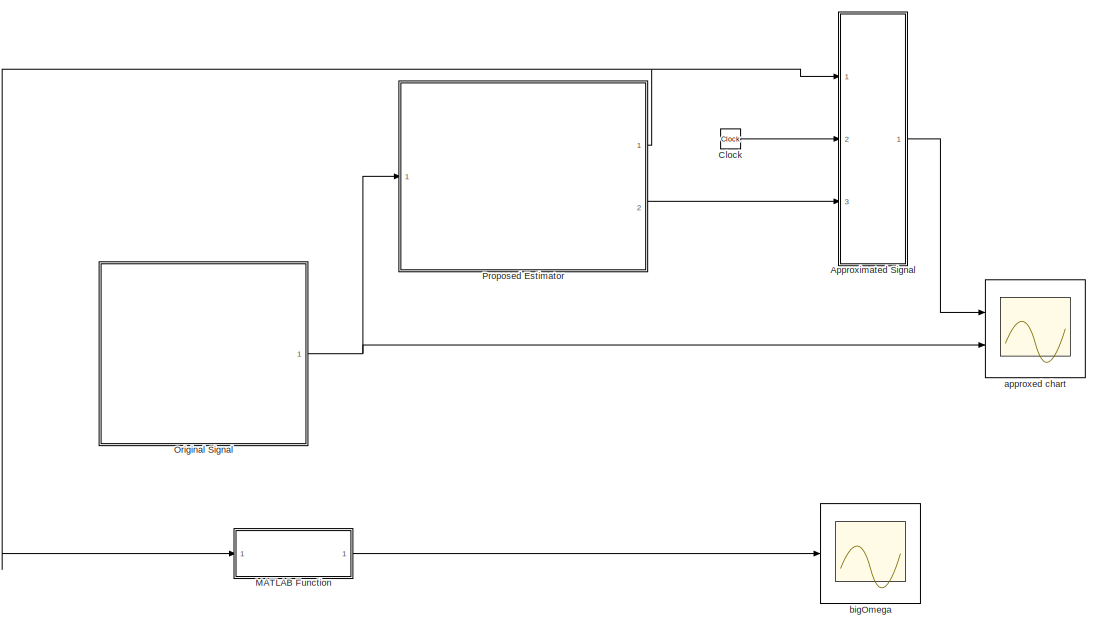
[diagram: root canvas - part 1/2, right side, full height]
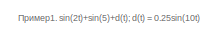
[diagram: root canvas - part 2/2, top left region]
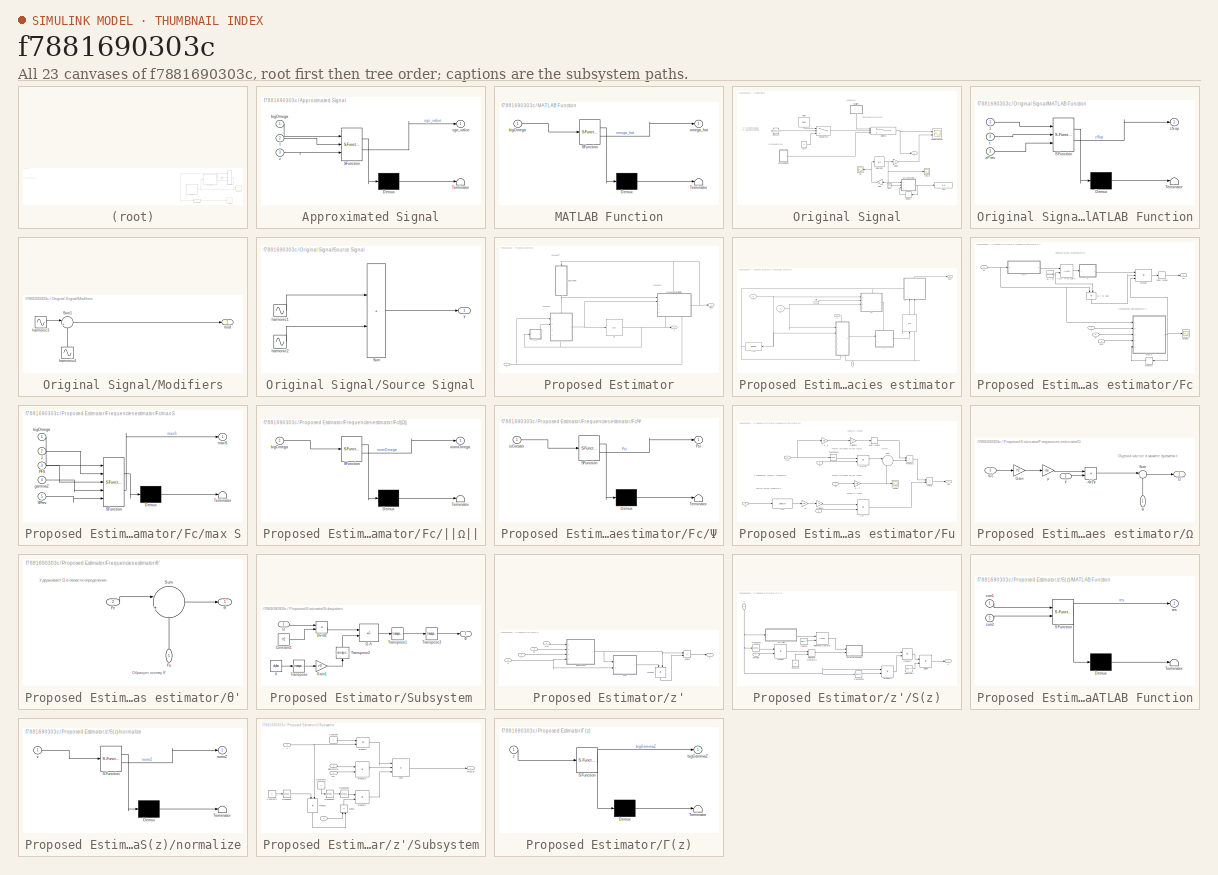
[diagram: thumbnail index - all 23 canvases of the model, root first then tree order]
MODEL slx_f7881690303c
KIND model
CONFIG AbsTol = auto
CONFIG EnableMultiTasking = off
CONFIG FixedStep = 0.0001
CONFIG MaxStep = auto
CONFIG MinStep = auto
CONFIG RelTol = 1e-3
CONFIG SampleTimeConstraint = Unconstrained
CONFIG SolverName = ode4
CONFIG StartTime = 0.0
CONFIG StopTime = 200.0
WORKSPACE source: external: MATLAB File  (data not in archive)
BLOCK [SubSystem] Approximated Signal
  ErrorFcn = Stateflow.Translate.translate
  PermitHierarchicalResolution = ExplicitOnly
  Ports = [3, 1]
  RequestExecContextInheritance = off
  SFBlockType = MATLAB Function
  TreatAsAtomicUnit = on
BLOCK [Demux] Approximated Signal/ Demux 
  Outputs = 1
  Ports = [1, 1]
BLOCK [S-Function] Approximated Signal/ SFunction 
  EnableBusSupport = on
  FunctionName = sf_sfun
  Parameters = dimension,r
  PortCounts = [3 2]
  Ports = [3, 2]
  SFcnIsStateOwnerBlock = off
  SFunctionDeploymentMode = off
  Tag = Stateflow S-Function 1
BLOCK [Terminator] Approximated Signal/ Terminator 
BLOCK [Inport] Approximated Signal/bigOmega
BLOCK [Outport] Approximated Signal/sgn_value
BLOCK [Inport] Approximated Signal/t
  Port = 2
BLOCK [Inport] Approximated Signal/z
  Port = 3
BLOCK [Clock] Clock
BLOCK [SubSystem] MATLAB Function
  ErrorFcn = Stateflow.Translate.translate
  PermitHierarchicalResolution = ExplicitOnly
  Ports = [1, 1]
  RequestExecContextInheritance = off
  SFBlockType = MATLAB Function
  TreatAsAtomicUnit = on
BLOCK [Demux] MATLAB Function/ Demux 
  Outputs = 1
  Ports = [1, 1]
BLOCK [S-Function] MATLAB Function/ SFunction 
  EnableBusSupport = on
  FunctionName = sf_sfun
  PortCounts = [1 2]
  Ports = [1, 2]
  SFcnIsStateOwnerBlock = off
  SFunctionDeploymentMode = off
  Tag = Stateflow S-Function 16
BLOCK [Terminator] MATLAB Function/ Terminator 
BLOCK [Inport] MATLAB Function/bigOmega
BLOCK [Outport] MATLAB Function/omega_hat
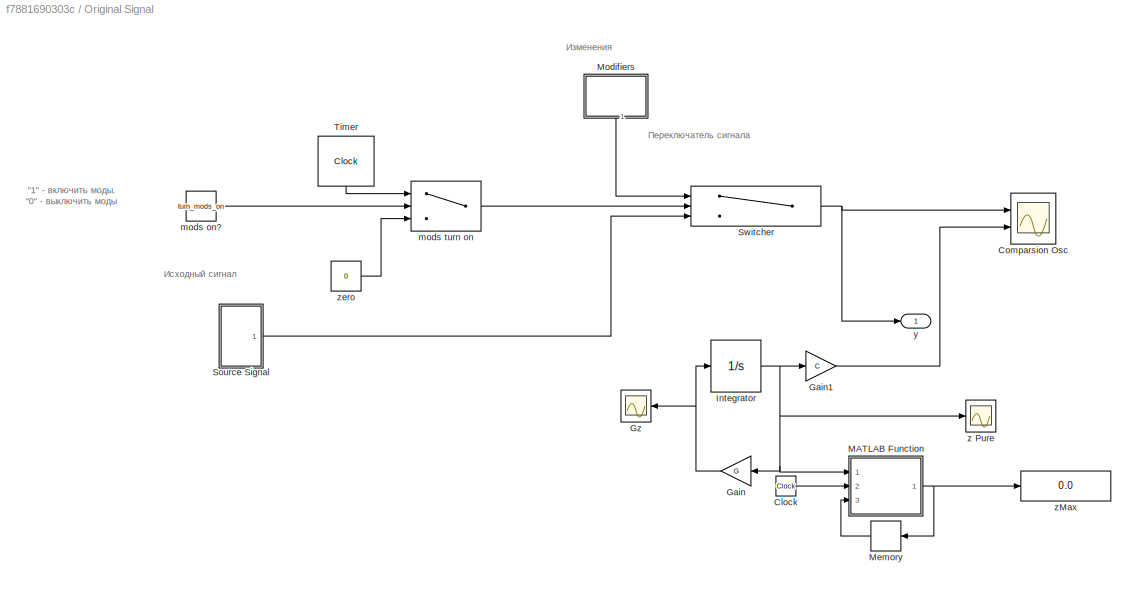
BLOCK [SubSystem] Original Signal
  Ports = [0, 1]
  Priority = 1
  RequestExecContextInheritance = off
  TreatAsAtomicUnit = on
BLOCK [Clock] Original Signal/Clock
  Commented = on
BLOCK [Scope] Original Signal/Comparsion Osc
  Floating = off
  NumInputPorts = 2
  Ports = [2]
  ScopeSpecificationString = Simulink.scopes.TimeScopeBlockCfg('CurrentConfiguration', extmgr.ConfigurationSet(extmgr.Configuration('Core','General UI',true),extmgr.Configuration('Core','Source UI',true),extmgr.Configuration('Sources','WiredSimulink',true,'DataLoggingVariableName','ScopeData1'),extmgr.Configuration('Visuals','Time Domain',true,'SerializedDisplays',{struct('MinYLimReal','-2.38245','MaxYLimReal','2.38245','YLab...<+2062ch>
BLOCK [Gain] Original Signal/Gain
  Commented = on
  Gain = G
  Multiplication = Matrix(K*u)
  NameLocation = top
BLOCK [Gain] Original Signal/Gain1
  Commented = on
  Gain = C
  Multiplication = Matrix(K*u)
  NameLocation = top
BLOCK [Scope] Original Signal/Gz
  Commented = on
  Floating = off
  NameLocation = top
  NumInputPorts = 1
  Ports = [1]
  ScopeSpecificationString = Simulink.scopes.TimeScopeBlockCfg('CurrentConfiguration', extmgr.ConfigurationSet(extmgr.Configuration('Core','General UI',true),extmgr.Configuration('Core','Source UI',true),extmgr.Configuration('Sources','WiredSimulink',true,'DataLoggingVariableName','ScopeData2'),extmgr.Configuration('Visuals','Time Domain',true,'SerializedDisplays',{struct('MinYLimReal','-5.00000','MaxYLimReal','5.00000','YLab...<+1469ch>
BLOCK [Integrator] Original Signal/Integrator
  Commented = on
  InitialCondition = [0;(r^2)/2;0;(r^2)/3;0]
  Ports = [1, 1]
BLOCK [SubSystem] Original Signal/MATLAB Function
  Commented = on
  ErrorFcn = Stateflow.Translate.translate
  PermitHierarchicalResolution = ExplicitOnly
  Ports = [3, 1]
  RequestExecContextInheritance = off
  SFBlockType = MATLAB Function
  TreatAsAtomicUnit = on
BLOCK [Demux] Original Signal/MATLAB Function/ Demux 
  Outputs = 1
  Ports = [1, 1]
BLOCK [S-Function] Original Signal/MATLAB Function/ SFunction 
  EnableBusSupport = on
  FunctionName = sf_sfun
  PortCounts = [3 2]
  Ports = [3, 2]
  SFcnIsStateOwnerBlock = off
  SFunctionDeploymentMode = off
  Tag = Stateflow S-Function 9
BLOCK [Terminator] Original Signal/MATLAB Function/ Terminator 
BLOCK [Inport] Original Signal/MATLAB Function/t
  Port = 2
BLOCK [Inport] Original Signal/MATLAB Function/z
BLOCK [Inport] Original Signal/MATLAB Function/zPrev
  Port = 3
BLOCK [Outport] Original Signal/MATLAB Function/zSup
BLOCK [Memory] Original Signal/Memory
  Commented = on
  NameLocation = top
BLOCK [SubSystem] Original Signal/Modifiers
  NameLocation = left
  Ports = [0, 1]
  RequestExecContextInheritance = off
BLOCK [Sum] Original Signal/Modifiers/Sum1
  Inputs = |++
  Ports = [2, 1]
BLOCK [Sin] Original Signal/Modifiers/harmonic3
  Amplitude = amp_M(1)
  Bias = bias_M(1)
  Frequency = freq_M(1)
  Phase = phase_M(1)
  Ports = [0, 1]
  Priority = 0
  SampleTime = 0
BLOCK [Sin] Original Signal/Modifiers/harmonic4
  Amplitude = amp_M(2)
  Bias = bias_M(2)
  Frequency = freq_M(2)
  NameLocation = right
  Phase = phase_M(2)
  Ports = [0, 1]
  Priority = 0
  SampleTime = 0
BLOCK [Outport] Original Signal/Modifiers/mod
BLOCK [SubSystem] Original Signal/Source Signal
  Ports = [0, 1]
  RequestExecContextInheritance = off
BLOCK [Sum] Original Signal/Source Signal/Sum
  IconShape = rectangular
  Inputs = |++
  Ports = [2, 1]
BLOCK [Sin] Original Signal/Source Signal/harmonic1
  Amplitude = amp(1)
  Bias = bias(1)
  Frequency = freq(1)
  Phase = phase(1)
  Ports = [0, 1]
  Priority = 0
  SampleTime = 0
BLOCK [Sin] Original Signal/Source Signal/harmonic2
  Amplitude = amp(2)
  Bias = bias(2)
  Frequency = freq(2)
  Phase = phase(2)
  Ports = [0, 1]
  Priority = 0
  SampleTime = 0
BLOCK [Outport] Original Signal/Source Signal/y
BLOCK [Switch] Original Signal/Switcher
  Criteria = u2 > Threshold
  InputSameDT = off
  SaturateOnIntegerOverflow = off
  Threshold = freqSwitcher
BLOCK [Clock] Original Signal/Timer
  DisplayTime = on
  NameLocation = left
BLOCK [Constant] Original Signal/mods on?
  Value = turn_mods_on
BLOCK [Switch] Original Signal/mods turn on
  Criteria = u2 > Threshold
  InputSameDT = off
  SaturateOnIntegerOverflow = off
BLOCK [Outport] Original Signal/y
BLOCK [Scope] Original Signal/z Pure
  Commented = on
  Floating = off
  NumInputPorts = 1
  Ports = [1]
  ScopeSpecificationString = Simulink.scopes.TimeScopeBlockCfg('CurrentConfiguration', extmgr.ConfigurationSet(extmgr.Configuration('Core','General UI',true),extmgr.Configuration('Core','Source UI',true),extmgr.Configuration('Sources','WiredSimulink',true,'DataLoggingVariableName','ScopeData1'),extmgr.Configuration('Visuals','Time Domain',true,'SerializedDisplays',{struct('MinYLimReal','-1.25','MaxYLimReal','1.25','YLabelReal...<+1579ch>
BLOCK [Display] Original Signal/zMax
  Commented = on
  Decimation = 1
  Format = long
  Ports = [1]
BLOCK [Constant] Original Signal/zero
  Value = 0
BLOCK [SubSystem] Proposed Estimator
  Ports = [1, 2]
  Priority = 2
  RequestExecContextInheritance = off
  TreatAsAtomicUnit = on
BLOCK [SubSystem] Proposed Estimator/Frequencies estimator
  PortSchema = {"entries":[{"content":{"sides":[{"content":{"connectorIds":["In1","In2"]},"type":"ConnectorPlacement.EquallySpacedRectSide","uuid":"56415c13-d553-4f88-94d3-75bcdc800e4b"},{"content":{"connectorIds":["Out1"],"side":"RIGHT"},"type":"ConnectorPlacement.EquallySpacedRectSide","uuid":"a1bdd2d2-4e49-40cb-b0b7-1df5316e4510"},{"content":{"connectorIds":["In3"],"side":"TOP"},"type":"ConnectorPlacement.Equ...<+406ch>
  Ports = [5, 1]
  RequestExecContextInheritance = off
BLOCK [SubSystem] Proposed Estimator/Frequencies estimator/Fc
  PortSchema = {"entries":[{"content":{"sides":[{"content":{"connectorIds":["In1","In2","In3"]},"type":"ConnectorPlacement.EquallySpacedRectSide","uuid":"ef8cffdc-1e6f-42c0-8cb3-bf318ca182f8"},{"content":{"connectorIds":["Out1"],"side":"RIGHT"},"type":"ConnectorPlacement.EquallySpacedRectSide","uuid":"a9c7e5b7-281a-47aa-808a-eb2877f3eee0"},{"content":{"connectorIds":["In4"],"side":"TOP"},"type":"ConnectorPlaceme...<+401ch>
  Ports = [4, 1]
  Priority = 8
  RequestExecContextInheritance = off
  TreatAsAtomicUnit = on
BLOCK [Outport] Proposed Estimator/Frequencies estimator/Fc/Fc
BLOCK [Memory] Proposed Estimator/Frequencies estimator/Fc/Memory
  NameLocation = top
BLOCK [Scope] Proposed Estimator/Frequencies estimator/Fc/Scope2
  Floating = off
  NumInputPorts = 1
  Ports = [1]
  ScopeSpecificationString = Simulink.scopes.TimeScopeBlockCfg('CurrentConfiguration', extmgr.ConfigurationSet(extmgr.Configuration('Core','General UI',true),extmgr.Configuration('Core','Source UI',true),extmgr.Configuration('Sources','WiredSimulink',true,'DataLoggingVariableName','ScopeData1'),extmgr.Configuration('Visuals','Time Domain',true,'PlotType','Line','SerializedDisplays',{struct('MinYLimReal','38.91523','MaxYLimRea...<+1529ch>
BLOCK [UnaryMinus] Proposed Estimator/Frequencies estimator/Fc/Unary Minus
BLOCK [SubSystem] Proposed Estimator/Frequencies estimator/Fc/max S
  ErrorFcn = Stateflow.Translate.translate
  PermitHierarchicalResolution = ExplicitOnly
  Ports = [5, 1]
  RequestExecContextInheritance = off
  SFBlockType = MATLAB Function
  TreatAsAtomicUnit = on
BLOCK [Demux] Proposed Estimator/Frequencies estimator/Fc/max S/ Demux 
  Outputs = 1
  Ports = [1, 1]
BLOCK [S-Function] Proposed Estimator/Frequencies estimator/Fc/max S/ SFunction 
  EnableBusSupport = on
  FunctionName = sf_sfun
  Parameters = delta,dimension,mu,r
  PortCounts = [5 2]
  Ports = [5, 2]
  SFcnIsStateOwnerBlock = off
  SFunctionDeploymentMode = off
  Tag = Stateflow S-Function 13
BLOCK [Terminator] Proposed Estimator/Frequencies estimator/Fc/max S/ Terminator 
BLOCK [Inport] Proposed Estimator/Frequencies estimator/Fc/max S/PHI
  Port = 3
BLOCK [Inport] Proposed Estimator/Frequencies estimator/Fc/max S/SPrev
  Port = 5
BLOCK [Inport] Proposed Estimator/Frequencies estimator/Fc/max S/bigOmega
BLOCK [Inport] Proposed Estimator/Frequencies estimator/Fc/max S/gammaZ
  Port = 4
BLOCK [Outport] Proposed Estimator/Frequencies estimator/Fc/max S/maxS
BLOCK [Inport] Proposed Estimator/Frequencies estimator/Fc/max S/z
  Port = 2
BLOCK [Product] Proposed Estimator/Frequencies estimator/Fc/product
  Inputs = 3
  Ports = [3, 1]
BLOCK [Inport] Proposed Estimator/Frequencies estimator/Fc/z
BLOCK [SubSystem] Proposed Estimator/Frequencies estimator/Fc/||Ω||
  ErrorFcn = Stateflow.Translate.translate
  PermitHierarchicalResolution = ExplicitOnly
  Ports = [1, 1]
  RequestExecContextInheritance = off
  SFBlockType = MATLAB Function
  TreatAsAtomicUnit = on
BLOCK [RelationalOperator] Proposed Estimator/Frequencies estimator/Fc/||Ω|| >= Ω cap ? 
  InputSameDT = off
  OutDataTypeStr = boolean
  Ports = [2, 1]
  RndMeth = Simplest
BLOCK [Demux] Proposed Estimator/Frequencies estimator/Fc/||Ω||/ Demux 
  Outputs = 1
  Ports = [1, 1]
BLOCK [S-Function] Proposed Estimator/Frequencies estimator/Fc/||Ω||/ SFunction 
  EnableBusSupport = on
  FunctionName = sf_sfun
  PortCounts = [1 2]
  Ports = [1, 2]
  SFcnIsStateOwnerBlock = off
  SFunctionDeploymentMode = off
  Tag = Stateflow S-Function 5
BLOCK [Terminator] Proposed Estimator/Frequencies estimator/Fc/||Ω||/ Terminator 
BLOCK [Inport] Proposed Estimator/Frequencies estimator/Fc/||Ω||/bigOmega
BLOCK [Outport] Proposed Estimator/Frequencies estimator/Fc/||Ω||/normOmega
BLOCK [SubSystem] Proposed Estimator/Frequencies estimator/Fc/Ψ
  ErrorFcn = Stateflow.Translate.translate
  PermitHierarchicalResolution = ExplicitOnly
  Ports = [1, 1]
  RequestExecContextInheritance = off
  SFBlockType = MATLAB Function
  TreatAsAtomicUnit = on
BLOCK [Demux] Proposed Estimator/Frequencies estimator/Fc/Ψ/ Demux 
  Outputs = 1
  Ports = [1, 1]
BLOCK [S-Function] Proposed Estimator/Frequencies estimator/Fc/Ψ/ SFunction 
  EnableBusSupport = on
  FunctionName = sf_sfun
  PortCounts = [1 2]
  Ports = [1, 2]
  SFcnIsStateOwnerBlock = off
  SFunctionDeploymentMode = off
  Tag = Stateflow S-Function 6
BLOCK [Terminator] Proposed Estimator/Frequencies estimator/Fc/Ψ/ Terminator 
BLOCK [Outport] Proposed Estimator/Frequencies estimator/Fc/Ψ/Psi
BLOCK [Inport] Proposed Estimator/Frequencies estimator/Fc/Ψ/isGreater
BLOCK [Inport] Proposed Estimator/Frequencies estimator/Fc/Ω
  Port = 2
BLOCK [Constant] Proposed Estimator/Frequencies estimator/Fc/Ω * √n
  Value = omegaLimiter
BLOCK [Product] Proposed Estimator/Frequencies estimator/Fc/Ω // Ω cap
  Inputs = */
  NameLocation = left
  Ports = [2, 1]
BLOCK [Inport] Proposed Estimator/Frequencies estimator/Fc/Г(z)
  Port = 4
BLOCK [Inport] Proposed Estimator/Frequencies estimator/Fc/Ф
  Port = 3
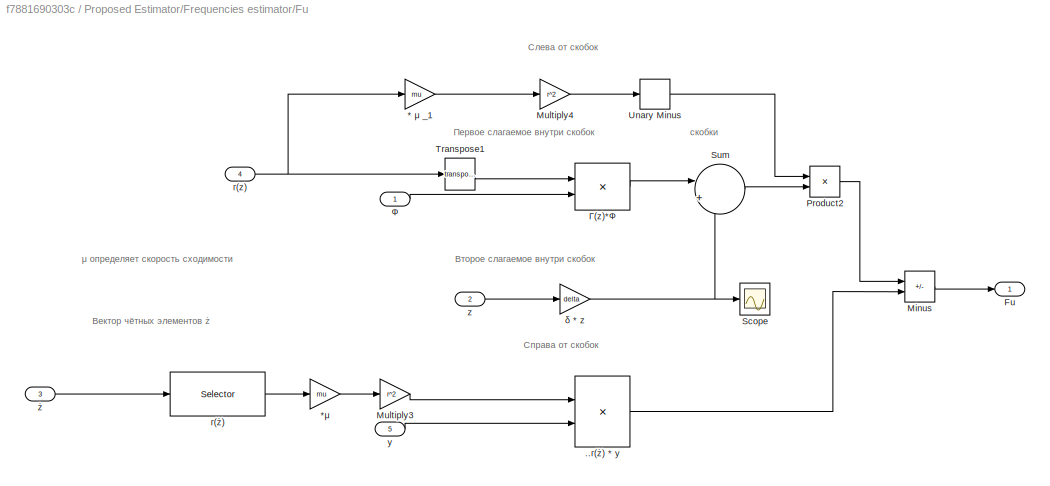
BLOCK [SubSystem] Proposed Estimator/Frequencies estimator/Fu
  PortSchema = {"entries":[{"content":{"sides":[{"content":{"connectorIds":["In1","In2"]},"type":"ConnectorPlacement.EquallySpacedRectSide","uuid":"56415c13-d553-4f88-94d3-75bcdc800e4b"},{"content":{"connectorIds":["Out1"],"side":"RIGHT"},"type":"ConnectorPlacement.EquallySpacedRectSide","uuid":"a1bdd2d2-4e49-40cb-b0b7-1df5316e4510"},{"content":{"connectorIds":["In3"],"side":"TOP"},"type":"ConnectorPlacement.Equ...<+406ch>
  Ports = [5, 1]
  Priority = 9
  RequestExecContextInheritance = off
  TreatAsAtomicUnit = on
BLOCK [Gain] Proposed Estimator/Frequencies estimator/Fu/* μ _1
  Gain = mu
BLOCK [Gain] Proposed Estimator/Frequencies estimator/Fu/*μ
  Gain = mu
BLOCK [Product] Proposed Estimator/Frequencies estimator/Fu/..г(ż) * y
  Ports = [2, 1]
BLOCK [Outport] Proposed Estimator/Frequencies estimator/Fu/Fu
BLOCK [Sum] Proposed Estimator/Frequencies estimator/Fu/Minus
  IconShape = rectangular
  Inputs = +-
  Ports = [2, 1]
BLOCK [Gain] Proposed Estimator/Frequencies estimator/Fu/Multiply3
  Gain = r^2
BLOCK [Gain] Proposed Estimator/Frequencies estimator/Fu/Multiply4
  Gain = r^2
BLOCK [Product] Proposed Estimator/Frequencies estimator/Fu/Product2
  Ports = [2, 1]
BLOCK [Scope] Proposed Estimator/Frequencies estimator/Fu/Scope
  Floating = off
  NumInputPorts = 1
  Ports = [1]
  ScopeSpecificationString = Simulink.scopes.TimeScopeBlockCfg('CurrentConfiguration', extmgr.ConfigurationSet(extmgr.Configuration('Core','General UI',true),extmgr.Configuration('Core','Source UI',true),extmgr.Configuration('Sources','WiredSimulink',true,'DataLoggingVariableName','ScopeData1'),extmgr.Configuration('Visuals','Time Domain',true,'SerializedDisplays',{struct('MinYLimReal','-3.51184','MaxYLimReal','3.96438','YLab...<+1362ch>
BLOCK [Sum] Proposed Estimator/Frequencies estimator/Fu/Sum
  Inputs = |++
  Ports = [2, 1]
BLOCK [Math] Proposed Estimator/Frequencies estimator/Fu/Transpose1
  Operator = transpose
  Ports = [1, 1]
BLOCK [UnaryMinus] Proposed Estimator/Frequencies estimator/Fu/Unary Minus
BLOCK [Inport] Proposed Estimator/Frequencies estimator/Fu/y
  Port = 5
BLOCK [Inport] Proposed Estimator/Frequencies estimator/Fu/z
  Port = 2
BLOCK [Inport] Proposed Estimator/Frequencies estimator/Fu/ż
  Port = 3
BLOCK [Gain] Proposed Estimator/Frequencies estimator/Fu/δ * z
  Gain = delta
  Multiplication = Matrix(K*u)
BLOCK [Product] Proposed Estimator/Frequencies estimator/Fu/Г(z)*Ф
  Multiplication = Matrix(*)
  Ports = [2, 1]
BLOCK [Inport] Proposed Estimator/Frequencies estimator/Fu/Ф
  NameLocation = left
BLOCK [Inport] Proposed Estimator/Frequencies estimator/Fu/г(z)
  Port = 4
BLOCK [Selector] Proposed Estimator/Frequencies estimator/Fu/г(ż)
  IndexOptions = Index vector (dialog)
  Indices = 2:2:2*dimension
  InputPortWidth = 2*dimension+1
  OutputSizes = 1
  Ports = [1, 1]
BLOCK [Inport] Proposed Estimator/Frequencies estimator/y
  NameLocation = right
  Port = 5
BLOCK [Inport] Proposed Estimator/Frequencies estimator/z
  Port = 4
BLOCK [Inport] Proposed Estimator/Frequencies estimator/ż
  Port = 2
BLOCK [SubSystem] Proposed Estimator/Frequencies estimator/Ω
  PortSchema = {"entries":[{"content":{"sides":[{"content":{"connectorIds":["In1","In2"]},"type":"ConnectorPlacement.EquallySpacedRectSide","uuid":"0172ca52-64e8-432c-895c-e5829558e278"},{"content":{"connectorIds":["Out1"],"side":"RIGHT"},"type":"ConnectorPlacement.EquallySpacedRectSide","uuid":"c83f4e01-5d94-498a-a9de-b4a302d500ab"},{"content":{"connectorIds":["In3"],"side":"TOP"},"type":"ConnectorPlacement.Equ...<+251ch>
  Ports = [3, 1]
  Priority = 5
  RequestExecContextInheritance = off
  TreatAsAtomicUnit = on
BLOCK [Inport] Proposed Estimator/Frequencies estimator/Ω in
  Port = 3
BLOCK [Outport] Proposed Estimator/Frequencies estimator/Ω out
BLOCK [Product] Proposed Estimator/Frequencies estimator/Ω/..г(z)*y
  Ports = [2, 1]
BLOCK [Gain] Proposed Estimator/Frequencies estimator/Ω/Gain
  Gain = r^2
BLOCK [Sum] Proposed Estimator/Frequencies estimator/Ω/Sum
  Inputs = |++
  Ports = [2, 1]
BLOCK [Inport] Proposed Estimator/Frequencies estimator/Ω/y
  Port = 2
BLOCK [Outport] Proposed Estimator/Frequencies estimator/Ω/Ω
BLOCK [Inport] Proposed Estimator/Frequencies estimator/Ω/θ
  NameLocation = right
BLOCK [Gain] Proposed Estimator/Frequencies estimator/Ω/μ
  Gain = mu
BLOCK [Inport] Proposed Estimator/Frequencies estimator/Ω/г(z)
  Port = 3
BLOCK [SubSystem] Proposed Estimator/Frequencies estimator/θ'
  PortSchema = {"entries":[{"content":{"sides":[{"content":{"connectorIds":["In1"]},"type":"ConnectorPlacement.EquallySpacedRectSide","uuid":"9184f415-d771-478b-8114-38f854f6aad6"},{"content":{"connectorIds":["Out1"],"side":"RIGHT"},"type":"ConnectorPlacement.EquallySpacedRectSide","uuid":"399c2935-e635-4d1c-9ba7-451eea57bae3"},{"content":{"connectorIds":["In2"],"side":"TOP"},"type":"ConnectorPlacement.EquallySp...<+245ch>
  Ports = [2, 1]
  Priority = 10
  RequestExecContextInheritance = off
  TreatAsAtomicUnit = on
BLOCK [Inport] Proposed Estimator/Frequencies estimator/θ'/Fc
  Port = 2
BLOCK [Inport] Proposed Estimator/Frequencies estimator/θ'/Fu
  NameLocation = right
BLOCK [Sum] Proposed Estimator/Frequencies estimator/θ'/Sum
  Inputs = |++
  Ports = [2, 1]
BLOCK [Outport] Proposed Estimator/Frequencies estimator/θ'/θ'
BLOCK [Inport] Proposed Estimator/Frequencies estimator/Ф
BLOCK [Selector] Proposed Estimator/Frequencies estimator/г(z)
  IndexOptions = Index vector (dialog)
  Indices = 2:2:2*dimension
  InputPortWidth = 2*dimension+1
  NameLocation = top
  OutputSizes = 1
  Ports = [1, 1]
BLOCK [Integrator] Proposed Estimator/Frequencies estimator/∫θ 
  InitialCondition = initialTheta
  NameLocation = right
  Ports = [1, 1]
  Priority = 3
BLOCK [SubSystem] Proposed Estimator/Subsystem
  Ports = [1, 1]
  Priority = 6
  RequestExecContextInheritance = off
  TreatAsAtomicUnit = on
BLOCK [Constant] Proposed Estimator/Subsystem/Constant1
  Value = r^2
BLOCK [Product] Proposed Estimator/Subsystem/Divide
  Inputs = */
  Ports = [2, 1]
BLOCK [Gain] Proposed Estimator/Subsystem/Gain1
  Gain = r^2
BLOCK [Math] Proposed Estimator/Subsystem/Transpose
  Operator = transpose
  Ports = [1, 1]
BLOCK [Math] Proposed Estimator/Subsystem/Transpose1
  Operator = transpose
  Ports = [1, 1]
BLOCK [Math] Proposed Estimator/Subsystem/Transpose2
  NameLocation = right
  Operator = transpose
  Ports = [1, 1]
BLOCK [Math] Proposed Estimator/Subsystem/Transpose3
  Operator = transpose
  Ports = [1, 1]
BLOCK [Constant] Proposed Estimator/Subsystem/Λ
  Value = alpha
BLOCK [Inport] Proposed Estimator/Subsystem/Ω
  NameLocation = top
BLOCK [Sum] Proposed Estimator/Subsystem/Ω-Λ
  IconShape = rectangular
  Inputs = +-
  Ports = [2, 1]
BLOCK [Outport] Proposed Estimator/Subsystem/Ф
BLOCK [Inport] Proposed Estimator/y
BLOCK [Outport] Proposed Estimator/z
  Port = 2
BLOCK [SubSystem] Proposed Estimator/z'
  PortSchema = {"entries":[{"content":{"sides":[{"content":{"connectorIds":["In1","In2"]},"type":"ConnectorPlacement.EquallySpacedRectSide","uuid":"ef8cffdc-1e6f-42c0-8cb3-bf318ca182f8"},{"content":{"connectorIds":["Out1"],"side":"RIGHT"},"type":"ConnectorPlacement.EquallySpacedRectSide","uuid":"a9c7e5b7-281a-47aa-808a-eb2877f3eee0"},{"content":{"connectorIds":["In3"],"side":"TOP"},"type":"ConnectorPlacement.Equ...<+400ch>
  Ports = [4, 1]
  Priority = 7
  RequestExecContextInheritance = off
  TreatAsAtomicUnit = on
BLOCK [Sum] Proposed Estimator/z'/Minus
  IconShape = rectangular
  Inputs = +-
  Ports = [2, 1]
BLOCK [Product] Proposed Estimator/z'/Product
  Multiplication = Matrix(*)
  NameLocation = left
  Ports = [2, 1]
BLOCK [SubSystem] Proposed Estimator/z'/S(z)
  Ports = [2, 1]
  RequestExecContextInheritance = off
BLOCK [Constant] Proposed Estimator/z'/S(z)/Constant
  NameLocation = right
  Value = 0
BLOCK [Constant] Proposed Estimator/z'/S(z)/Constant1
  Value = zMax * r^2
BLOCK [Product] Proposed Estimator/z'/S(z)/Divide
  Inputs = */
  Ports = [2, 1]
BLOCK [SubSystem] Proposed Estimator/z'/S(z)/MATLAB Function
  ErrorFcn = Stateflow.Translate.translate
  PermitHierarchicalResolution = ExplicitOnly
  Ports = [2, 1]
  RequestExecContextInheritance = off
  SFBlockType = MATLAB Function
  TreatAsAtomicUnit = on
BLOCK [Demux] Proposed Estimator/z'/S(z)/MATLAB Function/ Demux 
  Outputs = 1
  Ports = [1, 1]
BLOCK [S-Function] Proposed Estimator/z'/S(z)/MATLAB Function/ SFunction 
  EnableBusSupport = on
  FunctionName = sf_sfun
  PortCounts = [2 2]
  Ports = [2, 2]
  SFcnIsStateOwnerBlock = off
  SFunctionDeploymentMode = off
  Tag = Stateflow S-Function 4
BLOCK [Terminator] Proposed Estimator/z'/S(z)/MATLAB Function/ Terminator 
BLOCK [Inport] Proposed Estimator/z'/S(z)/MATLAB Function/con1
BLOCK [Inport] Proposed Estimator/z'/S(z)/MATLAB Function/con2
  Port = 2
BLOCK [Outport] Proposed Estimator/z'/S(z)/MATLAB Function/res
BLOCK [Product] Proposed Estimator/z'/S(z)/Product
  Multiplication = Matrix(*)
  Ports = [2, 1]
BLOCK [Product] Proposed Estimator/z'/S(z)/Product1
  Multiplication = Matrix(*)
  Ports = [2, 1]
BLOCK [Product] Proposed Estimator/z'/S(z)/Product2
  Ports = [2, 1]
BLOCK [RelationalOperator] Proposed Estimator/z'/S(z)/Relational Operator
  InputSameDT = off
  OutDataTypeStr = boolean
  Ports = [2, 1]
  RndMeth = Simplest
BLOCK [RelationalOperator] Proposed Estimator/z'/S(z)/Relational Operator1
  InputSameDT = off
  Operator = >
  OutDataTypeStr = boolean
  Ports = [2, 1]
  RndMeth = Simplest
BLOCK [Outport] Proposed Estimator/z'/S(z)/S
BLOCK [Math] Proposed Estimator/z'/S(z)/Transpose
  Operator = transpose
  Ports = [1, 1]
BLOCK [Math] Proposed Estimator/z'/S(z)/Transpose1
  Operator = transpose
  Ports = [1, 1]
BLOCK [Constant] Proposed Estimator/z'/S(z)/Z limiter
  Value = zMax * r^2
BLOCK [SubSystem] Proposed Estimator/z'/S(z)/normalize
  ErrorFcn = Stateflow.Translate.translate
  PermitHierarchicalResolution = ExplicitOnly
  Ports = [1, 1]
  RequestExecContextInheritance = off
  SFBlockType = MATLAB Function
  TreatAsAtomicUnit = on
BLOCK [Demux] Proposed Estimator/z'/S(z)/normalize/ Demux 
  Outputs = 1
  Ports = [1, 1]
BLOCK [S-Function] Proposed Estimator/z'/S(z)/normalize/ SFunction 
  EnableBusSupport = on
  FunctionName = sf_sfun
  PortCounts = [1 2]
  Ports = [1, 2]
  SFcnIsStateOwnerBlock = off
  SFunctionDeploymentMode = off
  Tag = Stateflow S-Function 10
BLOCK [Terminator] Proposed Estimator/z'/S(z)/normalize/ Terminator 
BLOCK [Outport] Proposed Estimator/z'/S(z)/normalize/normZ
BLOCK [Inport] Proposed Estimator/z'/S(z)/normalize/z
BLOCK [Inport] Proposed Estimator/z'/S(z)/z
  NameLocation = left
  Port = 2
BLOCK [Inport] Proposed Estimator/z'/S(z)/zPreDot
BLOCK [SubSystem] Proposed Estimator/z'/Subsystem
  Ports = [4, 1]
  RequestExecContextInheritance = off
BLOCK [Constant] Proposed Estimator/z'/Subsystem/Constant
  Value = A
BLOCK [Constant] Proposed Estimator/z'/Subsystem/Constant1
  Value = C
BLOCK [Constant] Proposed Estimator/z'/Subsystem/Constant2
  NameLocation = left
  Value = L
BLOCK [Sum] Proposed Estimator/z'/Subsystem/Minus
  IconShape = rectangular
  Inputs = +-
  NameLocation = right
  Ports = [2, 1]
BLOCK [Inport] Proposed Estimator/z'/Subsystem/PHI
  Port = 2
BLOCK [Product] Proposed Estimator/z'/Subsystem/Product
  Multiplication = Matrix(*)
  NameLocation = left
  Ports = [2, 1]
BLOCK [Product] Proposed Estimator/z'/Subsystem/Product1
  Multiplication = Matrix(*)
  Ports = [2, 1]
BLOCK [Product] Proposed Estimator/z'/Subsystem/Product2
  Multiplication = Matrix(*)
  Ports = [2, 1]
BLOCK [Product] Proposed Estimator/z'/Subsystem/Product3
  Multiplication = Matrix(*)
  Ports = [2, 1]
BLOCK [Sum] Proposed Estimator/z'/Subsystem/Sum
  IconShape = rectangular
  Inputs = |+++
  Ports = [3, 1]
BLOCK [Math] Proposed Estimator/z'/Subsystem/Transpose
  Operator = transpose
  Ports = [1, 1]
BLOCK [Math] Proposed Estimator/z'/Subsystem/Transpose1
  Operator = transpose
  Ports = [1, 1]
BLOCK [Math] Proposed Estimator/z'/Subsystem/Transpose2
  Operator = transpose
  Ports = [1, 1]
BLOCK [Inport] Proposed Estimator/z'/Subsystem/bigGamma
BLOCK [Inport] Proposed Estimator/z'/Subsystem/y
  Port = 3
BLOCK [Inport] Proposed Estimator/z'/Subsystem/z
  Port = 4
BLOCK [Outport] Proposed Estimator/z'/Subsystem/zPreDot
BLOCK [Inport] Proposed Estimator/z'/y
BLOCK [Inport] Proposed Estimator/z'/z
  Port = 4
BLOCK [Outport] Proposed Estimator/z'/z'
BLOCK [Inport] Proposed Estimator/z'/Г(z)
  Port = 2
BLOCK [Inport] Proposed Estimator/z'/Ф
  Port = 3
BLOCK [Outport] Proposed Estimator/Ωout
BLOCK [SubSystem] Proposed Estimator/Г(z)
  ErrorFcn = Stateflow.Translate.translate
  PermitHierarchicalResolution = ExplicitOnly
  Ports = [1, 1]
  Priority = 2
  RequestExecContextInheritance = off
  SFBlockType = MATLAB Function
  TreatAsAtomicUnit = on
BLOCK [Demux] Proposed Estimator/Г(z)/ Demux 
  Outputs = 1
  Ports = [1, 1]
BLOCK [S-Function] Proposed Estimator/Г(z)/ SFunction 
  EnableBusSupport = on
  FunctionName = sf_sfun
  Parameters = bigGammaZ0,dimension
  PortCounts = [1 2]
  Ports = [1, 2]
  SFcnIsStateOwnerBlock = off
  SFunctionDeploymentMode = off
  Tag = Stateflow S-Function 8
BLOCK [Terminator] Proposed Estimator/Г(z)/ Terminator 
BLOCK [Outport] Proposed Estimator/Г(z)/bigGammaZ
BLOCK [Inport] Proposed Estimator/Г(z)/z
BLOCK [Integrator] Proposed Estimator/∫Z 
  InitialCondition = initialZ
  Ports = [1, 1]
  Priority = 1
BLOCK [Scope] approxed chart
  Floating = off
  NumInputPorts = 2
  Ports = [2]
  ScopeSpecificationString = Simulink.scopes.TimeScopeBlockCfg('CurrentConfiguration', extmgr.ConfigurationSet(extmgr.Configuration('Core','General UI',true),extmgr.Configuration('Core','Source UI',true),extmgr.Configuration('Sources','WiredSimulink',true,'DataLoggingVariableName','ScopeData1'),extmgr.Configuration('Visuals','Time Domain',true,'SerializedDisplays',{struct('MinYLimReal','-2.5','MaxYLimReal','2.5','YLabelReal',...<+1544ch>
BLOCK [Scope] bigOmega
  Floating = off
  NumInputPorts = 1
  Ports = [1]
  ScopeSpecificationString = Simulink.scopes.TimeScopeBlockCfg('CurrentConfiguration', extmgr.ConfigurationSet(extmgr.Configuration('Core','General UI',true),extmgr.Configuration('Core','Source UI',true),extmgr.Configuration('Sources','WiredSimulink',true,'DataLoggingVariableName','ScopeData2'),extmgr.Configuration('Visuals','Time Domain',true,'PlotType','Line','SerializedDisplays',{struct('MinYLimReal','1.26248','MaxYLimReal...<+1599ch>
ANNOTATION (root): Пример1. sin(2t)+sin(5)+d(t); d(t) = 0.25sin(10t)
ANNOTATION Original Signal: "1" - включить моды. "0" - выключить моды
ANNOTATION Original Signal: Изменения
ANNOTATION Original Signal: Исходный сигнал
ANNOTATION Original Signal: Переключатель сигнала
ANNOTATION Proposed Estimator: Оценщик z
ANNOTATION Proposed Estimator: Оценщик Φ
ANNOTATION Proposed Estimator: Оценщик Ω
ANNOTATION Proposed Estimator/Frequencies estimator/Fc: Определение максимального S
ANNOTATION Proposed Estimator/Frequencies estimator/Fc: Переключатель ограничителя Fc
ANNOTATION Proposed Estimator/Frequencies estimator/Fu: μ определяет скорость сходимости
ANNOTATION Proposed Estimator/Frequencies estimator/Fu: Вектор чётных элементов ż
ANNOTATION Proposed Estimator/Frequencies estimator/Fu: Второе слагаемое внутри скобок
ANNOTATION Proposed Estimator/Frequencies estimator/Fu: Первое слагаемое внутри скобок
ANNOTATION Proposed Estimator/Frequencies estimator/Fu: Слева от скобок
ANNOTATION Proposed Estimator/Frequencies estimator/Fu: Справа от скобок
ANNOTATION Proposed Estimator/Frequencies estimator/Fu: скобки
ANNOTATION Proposed Estimator/Frequencies estimator/Ω: Оценка частот в момент времени t
ANNOTATION Proposed Estimator/Frequencies estimator/θ': Образует основу θ'
ANNOTATION Proposed Estimator/Frequencies estimator/θ': Удерживает Ω в области определения
LINE Approximated Signal:1 -> approxed chart:1
LINE Clock:1 -> Approximated Signal:2
LINE MATLAB Function:1 -> bigOmega:1
LINE Original Signal/Clock:1 -> Original Signal/MATLAB Function:2
LINE Original Signal/Gain1:1 -> Original Signal/Comparsion Osc:2
NET Original Signal/Gain:1 -> Original Signal/Gz:1, Original Signal/Integrator:1
NET Original Signal/Integrator:1 -> Original Signal/Gain1:1, Original Signal/Gain:1, Original Signal/MATLAB Function:1, Original Signal/z Pure:1
NET Original Signal/MATLAB Function:1 -> Original Signal/Memory:1, Original Signal/zMax:1
LINE Original Signal/Memory:1 -> Original Signal/MATLAB Function:3
LINE Original Signal/Modifiers/Sum1:1 -> Original Signal/Modifiers/mod:1
LINE Original Signal/Modifiers/harmonic3:1 -> Original Signal/Modifiers/Sum1:1
LINE Original Signal/Modifiers/harmonic4:1 -> Original Signal/Modifiers/Sum1:2
LINE Original Signal/Modifiers:1 -> Original Signal/Switcher:1
LINE Original Signal/Source Signal/Sum:1 -> Original Signal/Source Signal/y:1
LINE Original Signal/Source Signal/harmonic1:1 -> Original Signal/Source Signal/Sum:1
LINE Original Signal/Source Signal/harmonic2:1 -> Original Signal/Source Signal/Sum:2
LINE Original Signal/Source Signal:1 -> Original Signal/Switcher:3
NET Original Signal/Switcher:1 -> Original Signal/Comparsion Osc:1, Original Signal/y:1
LINE Original Signal/Timer:1 -> Original Signal/mods turn on:1
LINE Original Signal/mods on?:1 -> Original Signal/mods turn on:2
LINE Original Signal/mods turn on:1 -> Original Signal/Switcher:2
LINE Original Signal/zero:1 -> Original Signal/mods turn on:3
NET Original Signal:1 -> Proposed Estimator:1, approxed chart:2
LINE Proposed Estimator/Frequencies estimator/Fc/Memory:1 -> Proposed Estimator/Frequencies estimator/Fc/max S:5
LINE Proposed Estimator/Frequencies estimator/Fc/Unary Minus:1 -> Proposed Estimator/Frequencies estimator/Fc/Fc:1
NET Proposed Estimator/Frequencies estimator/Fc/max S:1 -> Proposed Estimator/Frequencies estimator/Fc/Memory:1, Proposed Estimator/Frequencies estimator/Fc/Scope2:1, Proposed Estimator/Frequencies estimator/Fc/product:3
LINE Proposed Estimator/Frequencies estimator/Fc/product:1 -> Proposed Estimator/Frequencies estimator/Fc/Unary Minus:1
LINE Proposed Estimator/Frequencies estimator/Fc/z:1 -> Proposed Estimator/Frequencies estimator/Fc/max S:2
LINE Proposed Estimator/Frequencies estimator/Fc/||Ω|| >= Ω cap ? :1 -> Proposed Estimator/Frequencies estimator/Fc/Ψ:1
LINE Proposed Estimator/Frequencies estimator/Fc/||Ω||:1 -> Proposed Estimator/Frequencies estimator/Fc/||Ω|| >= Ω cap ? :1
LINE Proposed Estimator/Frequencies estimator/Fc/Ψ:1 -> Proposed Estimator/Frequencies estimator/Fc/product:1
NET Proposed Estimator/Frequencies estimator/Fc/Ω * √n:1 -> Proposed Estimator/Frequencies estimator/Fc/||Ω|| >= Ω cap ? :2, Proposed Estimator/Frequencies estimator/Fc/Ω // Ω cap:2
LINE Proposed Estimator/Frequencies estimator/Fc/Ω // Ω cap:1 -> Proposed Estimator/Frequencies estimator/Fc/product:2
NET Proposed Estimator/Frequencies estimator/Fc/Ω:1 -> Proposed Estimator/Frequencies estimator/Fc/max S:1, Proposed Estimator/Frequencies estimator/Fc/||Ω||:1, Proposed Estimator/Frequencies estimator/Fc/Ω // Ω cap:1
LINE Proposed Estimator/Frequencies estimator/Fc/Г(z):1 -> Proposed Estimator/Frequencies estimator/Fc/max S:4
LINE Proposed Estimator/Frequencies estimator/Fc/Ф:1 -> Proposed Estimator/Frequencies estimator/Fc/max S:3
LINE Proposed Estimator/Frequencies estimator/Fc:1 -> Proposed Estimator/Frequencies estimator/θ':2
LINE Proposed Estimator/Frequencies estimator/Fu/* μ _1:1 -> Proposed Estimator/Frequencies estimator/Fu/Multiply4:1
LINE Proposed Estimator/Frequencies estimator/Fu/*μ:1 -> Proposed Estimator/Frequencies estimator/Fu/Multiply3:1
LINE Proposed Estimator/Frequencies estimator/Fu/..г(ż) * y:1 -> Proposed Estimator/Frequencies estimator/Fu/Minus:2
LINE Proposed Estimator/Frequencies estimator/Fu/Minus:1 -> Proposed Estimator/Frequencies estimator/Fu/Fu:1
LINE Proposed Estimator/Frequencies estimator/Fu/Multiply3:1 -> Proposed Estimator/Frequencies estimator/Fu/..г(ż) * y:1
LINE Proposed Estimator/Frequencies estimator/Fu/Multiply4:1 -> Proposed Estimator/Frequencies estimator/Fu/Unary Minus:1
LINE Proposed Estimator/Frequencies estimator/Fu/Product2:1 -> Proposed Estimator/Frequencies estimator/Fu/Minus:1
LINE Proposed Estimator/Frequencies estimator/Fu/Sum:1 -> Proposed Estimator/Frequencies estimator/Fu/Product2:2
LINE Proposed Estimator/Frequencies estimator/Fu/Transpose1:1 -> Proposed Estimator/Frequencies estimator/Fu/Г(z)*Ф:1
LINE Proposed Estimator/Frequencies estimator/Fu/Unary Minus:1 -> Proposed Estimator/Frequencies estimator/Fu/Product2:1
LINE Proposed Estimator/Frequencies estimator/Fu/y:1 -> Proposed Estimator/Frequencies estimator/Fu/..г(ż) * y:2
LINE Proposed Estimator/Frequencies estimator/Fu/z:1 -> Proposed Estimator/Frequencies estimator/Fu/δ * z:1
LINE Proposed Estimator/Frequencies estimator/Fu/ż:1 -> Proposed Estimator/Frequencies estimator/Fu/г(ż):1
NET Proposed Estimator/Frequencies estimator/Fu/δ * z:1 -> Proposed Estimator/Frequencies estimator/Fu/Scope:1, Proposed Estimator/Frequencies estimator/Fu/Sum:2
LINE Proposed Estimator/Frequencies estimator/Fu/Г(z)*Ф:1 -> Proposed Estimator/Frequencies estimator/Fu/Sum:1
LINE Proposed Estimator/Frequencies estimator/Fu/Ф:1 -> Proposed Estimator/Frequencies estimator/Fu/Г(z)*Ф:2
NET Proposed Estimator/Frequencies estimator/Fu/г(z):1 -> Proposed Estimator/Frequencies estimator/Fu/* μ _1:1, Proposed Estimator/Frequencies estimator/Fu/Transpose1:1
LINE Proposed Estimator/Frequencies estimator/Fu/г(ż):1 -> Proposed Estimator/Frequencies estimator/Fu/*μ:1
LINE Proposed Estimator/Frequencies estimator/Fu:1 -> Proposed Estimator/Frequencies estimator/θ':1
NET Proposed Estimator/Frequencies estimator/y:1 -> Proposed Estimator/Frequencies estimator/Fu:5, Proposed Estimator/Frequencies estimator/Ω:2
NET Proposed Estimator/Frequencies estimator/z:1 -> Proposed Estimator/Frequencies estimator/Fc:1, Proposed Estimator/Frequencies estimator/Fu:2, Proposed Estimator/Frequencies estimator/г(z):1
LINE Proposed Estimator/Frequencies estimator/ż:1 -> Proposed Estimator/Frequencies estimator/Fu:3
LINE Proposed Estimator/Frequencies estimator/Ω in:1 -> Proposed Estimator/Frequencies estimator/Fc:2
LINE Proposed Estimator/Frequencies estimator/Ω/..г(z)*y:1 -> Proposed Estimator/Frequencies estimator/Ω/Sum:1
LINE Proposed Estimator/Frequencies estimator/Ω/Gain:1 -> Proposed Estimator/Frequencies estimator/Ω/μ:1
LINE Proposed Estimator/Frequencies estimator/Ω/Sum:1 -> Proposed Estimator/Frequencies estimator/Ω/Ω:1
LINE Proposed Estimator/Frequencies estimator/Ω/y:1 -> Proposed Estimator/Frequencies estimator/Ω/..г(z)*y:2
LINE Proposed Estimator/Frequencies estimator/Ω/θ:1 -> Proposed Estimator/Frequencies estimator/Ω/Sum:2
LINE Proposed Estimator/Frequencies estimator/Ω/μ:1 -> Proposed Estimator/Frequencies estimator/Ω/..г(z)*y:1
LINE Proposed Estimator/Frequencies estimator/Ω/г(z):1 -> Proposed Estimator/Frequencies estimator/Ω/Gain:1
LINE Proposed Estimator/Frequencies estimator/Ω:1 -> Proposed Estimator/Frequencies estimator/Ω out:1
LINE Proposed Estimator/Frequencies estimator/θ'/Fc:1 -> Proposed Estimator/Frequencies estimator/θ'/Sum:1
LINE Proposed Estimator/Frequencies estimator/θ'/Fu:1 -> Proposed Estimator/Frequencies estimator/θ'/Sum:2
LINE Proposed Estimator/Frequencies estimator/θ'/Sum:1 -> Proposed Estimator/Frequencies estimator/θ'/θ':1
LINE Proposed Estimator/Frequencies estimator/θ':1 -> Proposed Estimator/Frequencies estimator/∫θ :1
NET Proposed Estimator/Frequencies estimator/Ф:1 -> Proposed Estimator/Frequencies estimator/Fc:3, Proposed Estimator/Frequencies estimator/Fu:1
NET Proposed Estimator/Frequencies estimator/г(z):1 -> Proposed Estimator/Frequencies estimator/Fc:4, Proposed Estimator/Frequencies estimator/Fu:4, Proposed Estimator/Frequencies estimator/Ω:3
LINE Proposed Estimator/Frequencies estimator/∫θ :1 -> Proposed Estimator/Frequencies estimator/Ω:1
NET Proposed Estimator/Frequencies estimator:1 -> Proposed Estimator/Frequencies estimator:3, Proposed Estimator/Subsystem:1, Proposed Estimator/Ωout:1
LINE Proposed Estimator/Subsystem/Constant1:1 -> Proposed Estimator/Subsystem/Divide:2
LINE Proposed Estimator/Subsystem/Divide:1 -> Proposed Estimator/Subsystem/Ω-Λ:1
LINE Proposed Estimator/Subsystem/Gain1:1 -> Proposed Estimator/Subsystem/Transpose2:1
LINE Proposed Estimator/Subsystem/Transpose1:1 -> Proposed Estimator/Subsystem/Transpose3:1
LINE Proposed Estimator/Subsystem/Transpose2:1 -> Proposed Estimator/Subsystem/Ω-Λ:2
LINE Proposed Estimator/Subsystem/Transpose3:1 -> Proposed Estimator/Subsystem/Ф:1
LINE Proposed Estimator/Subsystem/Transpose:1 -> Proposed Estimator/Subsystem/Gain1:1
LINE Proposed Estimator/Subsystem/Λ:1 -> Proposed Estimator/Subsystem/Transpose:1
LINE Proposed Estimator/Subsystem/Ω-Λ:1 -> Proposed Estimator/Subsystem/Transpose1:1
LINE Proposed Estimator/Subsystem/Ω:1 -> Proposed Estimator/Subsystem/Divide:1
NET Proposed Estimator/Subsystem:1 -> Proposed Estimator/Frequencies estimator:1, Proposed Estimator/z':3
NET Proposed Estimator/y:1 -> Proposed Estimator/Frequencies estimator:5, Proposed Estimator/z':1
LINE Proposed Estimator/z'/Minus:1 -> Proposed Estimator/z'/z':1
LINE Proposed Estimator/z'/Product:1 -> Proposed Estimator/z'/Minus:2
LINE Proposed Estimator/z'/S(z)/Constant1:1 -> Proposed Estimator/z'/S(z)/Divide:2
LINE Proposed Estimator/z'/S(z)/Constant:1 -> Proposed Estimator/z'/S(z)/Relational Operator1:2
LINE Proposed Estimator/z'/S(z)/Divide:1 -> Proposed Estimator/z'/S(z)/S:1
LINE Proposed Estimator/z'/S(z)/MATLAB Function:1 -> Proposed Estimator/z'/S(z)/Product2:1
LINE Proposed Estimator/z'/S(z)/Product1:1 -> Proposed Estimator/z'/S(z)/Product2:2
LINE Proposed Estimator/z'/S(z)/Product2:1 -> Proposed Estimator/z'/S(z)/Divide:1
LINE Proposed Estimator/z'/S(z)/Product:1 -> Proposed Estimator/z'/S(z)/Relational Operator1:1
LINE Proposed Estimator/z'/S(z)/Relational Operator1:1 -> Proposed Estimator/z'/S(z)/MATLAB Function:2
LINE Proposed Estimator/z'/S(z)/Relational Operator:1 -> Proposed Estimator/z'/S(z)/MATLAB Function:1
LINE Proposed Estimator/z'/S(z)/Transpose1:1 -> Proposed Estimator/z'/S(z)/Product1:2
LINE Proposed Estimator/z'/S(z)/Transpose:1 -> Proposed Estimator/z'/S(z)/Product:1
LINE Proposed Estimator/z'/S(z)/Z limiter:1 -> Proposed Estimator/z'/S(z)/Relational Operator:2
LINE Proposed Estimator/z'/S(z)/normalize:1 -> Proposed Estimator/z'/S(z)/Relational Operator:1
NET Proposed Estimator/z'/S(z)/z:1 -> Proposed Estimator/z'/S(z)/Product1:1, Proposed Estimator/z'/S(z)/Transpose1:1, Proposed Estimator/z'/S(z)/Transpose:1, Proposed Estimator/z'/S(z)/normalize:1
LINE Proposed Estimator/z'/S(z)/zPreDot:1 -> Proposed Estimator/z'/S(z)/Product:2
LINE Proposed Estimator/z'/S(z):1 -> Proposed Estimator/z'/Product:1
LINE Proposed Estimator/z'/Subsystem/Constant1:1 -> Proposed Estimator/z'/Subsystem/Transpose:1
LINE Proposed Estimator/z'/Subsystem/Constant2:1 -> Proposed Estimator/z'/Subsystem/Transpose1:1
LINE Proposed Estimator/z'/Subsystem/Constant:1 -> Proposed Estimator/z'/Subsystem/Product2:1
LINE Proposed Estimator/z'/Subsystem/Minus:1 -> Proposed Estimator/z'/Subsystem/Product1:2
LINE Proposed Estimator/z'/Subsystem/PHI:1 -> Proposed Estimator/z'/Subsystem/Product3:2
LINE Proposed Estimator/z'/Subsystem/Product1:1 -> Proposed Estimator/z'/Subsystem/Sum:3
LINE Proposed Estimator/z'/Subsystem/Product2:1 -> Proposed Estimator/z'/Subsystem/Sum:1
LINE Proposed Estimator/z'/Subsystem/Product3:1 -> Proposed Estimator/z'/Subsystem/Sum:2
LINE Proposed Estimator/z'/Subsystem/Product:1 -> Proposed Estimator/z'/Subsystem/Minus:2
LINE Proposed Estimator/z'/Subsystem/Sum:1 -> Proposed Estimator/z'/Subsystem/zPreDot:1
LINE Proposed Estimator/z'/Subsystem/Transpose1:1 -> Proposed Estimator/z'/Subsystem/Transpose2:1
LINE Proposed Estimator/z'/Subsystem/Transpose2:1 -> Proposed Estimator/z'/Subsystem/Product1:1
LINE Proposed Estimator/z'/Subsystem/Transpose:1 -> Proposed Estimator/z'/Subsystem/Product:1
LINE Proposed Estimator/z'/Subsystem/bigGamma:1 -> Proposed Estimator/z'/Subsystem/Product3:1
LINE Proposed Estimator/z'/Subsystem/y:1 -> Proposed Estimator/z'/Subsystem/Minus:1
NET Proposed Estimator/z'/Subsystem/z:1 -> Proposed Estimator/z'/Subsystem/Product2:2, Proposed Estimator/z'/Subsystem/Product:2
NET Proposed Estimator/z'/Subsystem:1 -> Proposed Estimator/z'/Minus:1, Proposed Estimator/z'/Product:2, Proposed Estimator/z'/S(z):1
LINE Proposed Estimator/z'/y:1 -> Proposed Estimator/z'/Subsystem:3
NET Proposed Estimator/z'/z:1 -> Proposed Estimator/z'/S(z):2, Proposed Estimator/z'/Subsystem:4
LINE Proposed Estimator/z'/Г(z):1 -> Proposed Estimator/z'/Subsystem:1
LINE Proposed Estimator/z'/Ф:1 -> Proposed Estimator/z'/Subsystem:2
NET Proposed Estimator/z':1 -> Proposed Estimator/Frequencies estimator:2, Proposed Estimator/∫Z :1
LINE Proposed Estimator/Г(z):1 -> Proposed Estimator/z':2
NET Proposed Estimator/∫Z :1 -> Proposed Estimator/Frequencies estimator:4, Proposed Estimator/z':4, Proposed Estimator/z:1, Proposed Estimator/Г(z):1
NET Proposed Estimator:1 -> Approximated Signal:1, MATLAB Function:1
LINE Proposed Estimator:2 -> Approximated Signal:3
note: NET lines group one-source signal fan-out (src -> all destinations, sorted); 1:1 wires keep LINE
CHART Approximated Signal states=1 transitions=1
  STATE_LABEL 'eML_blk_kernel()'
  STATE_LABEL 'SCRIPT:\nfunction sgn_value = sgnl_generated(bigOmega, t, r, dimension, z)\n\nz3 = z(end);\nz1 = z(1:2:end-1);\nz2 = z(2:2:end);\n\nbias = z3;\n\n\n\nfrequency = zeros(1, dimension);\namplitude = zeros(1, dimension);\nphase = zeros (1, dimension);\n\nsgn_value = bias;\n\nfor j=1:dimension\n    frequency(j) = sqrt(abs(bigOmega(j)));\n\n    amplitude(j) = sqrt(z1(j).^2 + ((frequency(j).^2/r^4).*z2(j).^2));\n\n    phase(j...<+210ch>'
CHART Proposed Estimator/z'/S(z)/MATLAB Function states=1 transitions=1
  STATE_LABEL 'eML_blk_kernel()'
  STATE_LABEL 'SCRIPT:\nfunction res = fcn(con1, con2)\n\nif (con1 == true) && (con2 == true)\n    res = 1;\nelse\n    res = 0;\nend\n'
CHART Proposed Estimator/Frequencies estimator/Fc/||Ω|| states=1 transitions=1
  STATE_LABEL 'eML_blk_kernel()'
  STATE_LABEL 'SCRIPT:\nfunction normOmega = norma(bigOmega)\n\nnormOmega = norm(bigOmega);\n'
CHART Proposed Estimator/Frequencies estimator/Fc/Ψ states=1 transitions=1
  STATE_LABEL 'eML_blk_kernel()'
  STATE_LABEL 'SCRIPT:\nfunction Psi = PSI(isGreater)\n\nif isGreater\n    Psi = 1;\nelse \n    Psi = 0;\nend'
CHART Proposed Estimator/Г(z) states=1 transitions=1
  STATE_LABEL 'eML_blk_kernel()'
  STATE_LABEL 'SCRIPT:\nfunction bigGammaZ = gms1(z, dimension, bigGammaZ0)\n\nbigGammaZ = bigGammaZ0;\nfor i = 1:dimension\n    bigGammaZ(2*i - 1,i) = z(2*i);\nend\n\n'
CHART Original Signal/MATLAB Function states=1 transitions=1
  STATE_LABEL 'eML_blk_kernel()'
  STATE_LABEL 'SCRIPT:\nfunction zSup = fcn(z, t, zPrev)\n\n\n\nif (t == 0)\n    zPrev = norm(z);\nend\n\nzSup = max(norm(z),zPrev);\n\n'
CHART Proposed Estimator/z'/S(z)/normalize states=1 transitions=1
  STATE_LABEL 'eML_blk_kernel()'
  STATE_LABEL 'SCRIPT:\nfunction normZ = norma(z)\n\nnormZ = norm(z);\n'
CHART Proposed Estimator/Frequencies estimator/Fc/max S states=1 transitions=1
  STATE_LABEL 'eML_blk_kernel()'
  STATE_LABEL 'SCRIPT:\nfunction maxS = SCounter(bigOmega, z, mu, r, delta, PHI, gammaZ, SPrev, dimension)...\n\n    tempSum = 0;\n\n    z2 = z(2:2:end);\n\n    frequency = zeros(dimension,1);\n    for i = 1:dimension\n        frequency(i) = sqrt(abs(bigOmega(i))); \n    end\n\n    disturbanceDot = 0;\n\n    for i = 1:dimension\n        tempSum = tempSum + frequency(i)^2 * z2(i) + disturbanceDot; %1 \n    end\n\n    gammaZ = gamm...<+250ch>'
CHART MATLAB Function states=1 transitions=1
  STATE_LABEL 'eML_blk_kernel()'
  STATE_LABEL 'SCRIPT:\nfunction omega_hat = fcn(bigOmega)\n\nomega_hat = sqrt(abs(bigOmega));\n'
CHART  states=0 transitions=0
CHART  states=0 transitions=0
CHART  states=0 transitions=0
CHART  states=0 transitions=0
CHART  states=0 transitions=0
CHART  states=0 transitions=0
CHART  states=0 transitions=0
CHART  states=0 transitions=0
CHART  states=0 transitions=0
